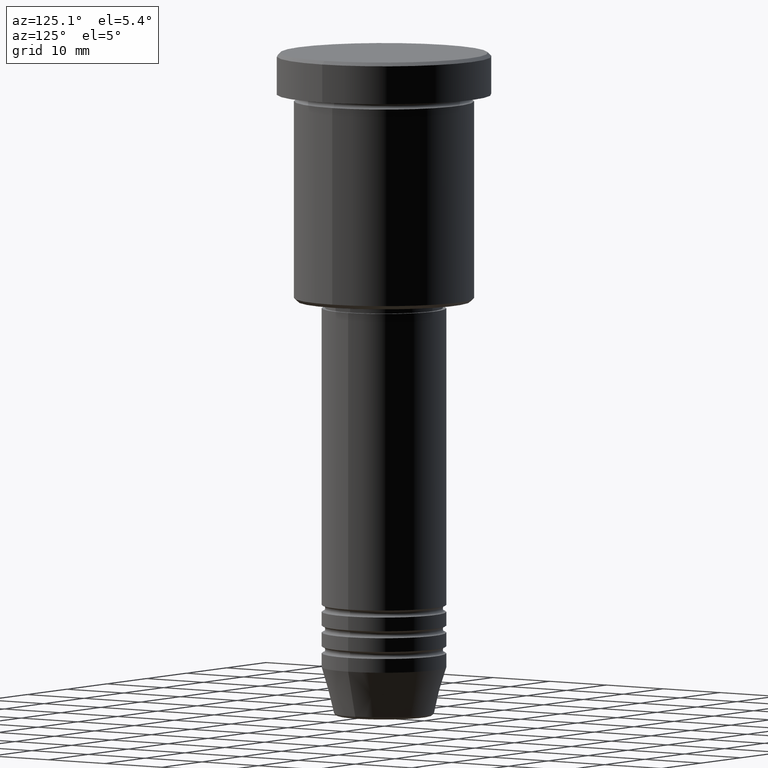
[diagram: clean part render]
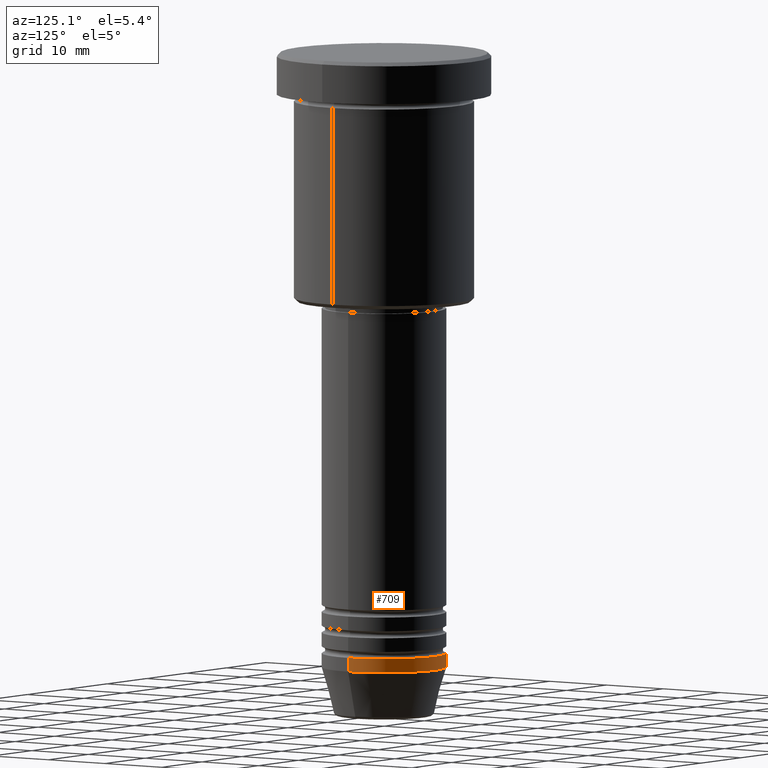
[diagram: same view with one face highlighted and labeled with its STEP entity id]
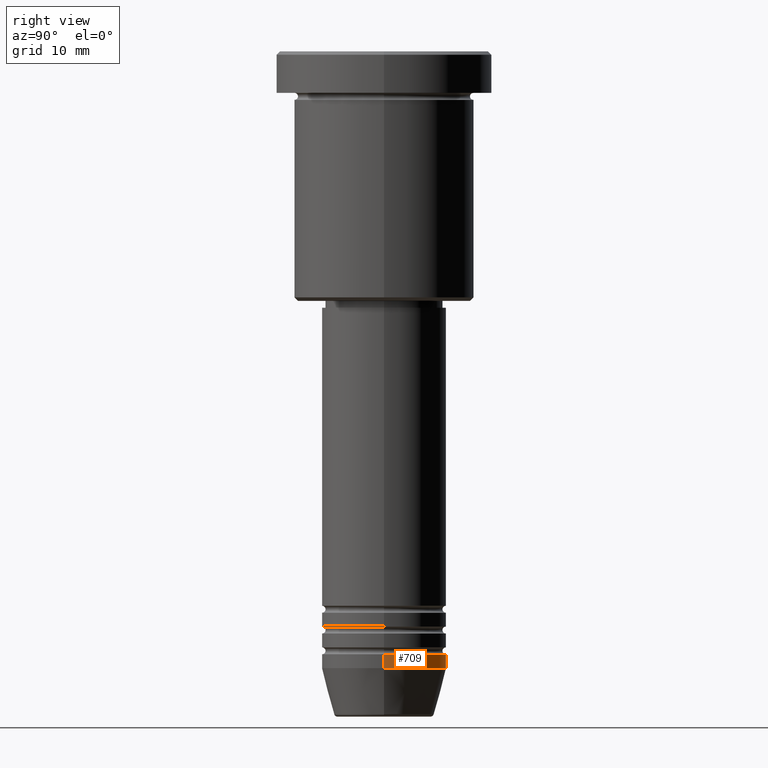
[diagram: same view with one face highlighted and labeled with its STEP entity id]
A machine part, auxiliary view. The second image highlights one B-rep face of the part: STEP entity #709.
A second angle (right view) of the same face is appended — the face is thin or edge-on in the first view.
In plain terms, the highlighted cylindrical surface (partial cylindrical patch) has radius 9 mm, axis along (-0, -0, 1).
Its self-contained STEP definition (entity closure, byte-faithful):
#46 = VERTEX_POINT ( 'NONE', #991 ) ;
#59 = FACE_OUTER_BOUND ( 'NONE', #251, .T. ) ;
#110 = ORIENTED_EDGE ( 'NONE', *, *, #828, .F. ) ;
#125 = DIRECTION ( 'NONE',  ( 1.000000000000000000, 0.000000000000000000, 0.000000000000000000 ) ) ;
#136 = DIRECTION ( 'NONE',  ( -0.000000000000000000, -0.000000000000000000, 1.000000000000000000 ) ) ;
#158 = ORIENTED_EDGE ( 'NONE', *, *, #290, .F. ) ;
#164 = AXIS2_PLACEMENT_3D ( 'NONE', #258, #351, #543 ) ;
#199 = EDGE_CURVE ( 'NONE', #46, #562, #1054, .T. ) ;
#232 = DIRECTION ( 'NONE',  ( -0.000000000000000000, -0.000000000000000000, 1.000000000000000000 ) ) ;
#247 = CARTESIAN_POINT ( 'NONE',  ( 0.000000000000000000, 0.000000000000000000, 0.000000000000000000 ) ) ;
#251 = EDGE_LOOP ( 'NONE', ( #681, #399, #158, #110 ) ) ;
#258 = CARTESIAN_POINT ( 'NONE',  ( 0.000000000000000000, 0.000000000000000000, -89.00000000000000000 ) ) ;
#287 = CIRCLE ( 'NONE', #164, 9.000000000000000000 ) ;
#290 = EDGE_CURVE ( 'NONE', #922, #562, #804, .T. ) ;
#313 = CYLINDRICAL_SURFACE ( 'NONE', #614, 9.000000000000000000 ) ;
#351 = DIRECTION ( 'NONE',  ( -0.000000000000000000, -0.000000000000000000, 1.000000000000000000 ) ) ;
#399 = ORIENTED_EDGE ( 'NONE', *, *, #199, .T. ) ;
#405 = CARTESIAN_POINT ( 'NONE',  ( -9.000000000000000000, 1.102182119232617714E-15, 0.000000000000000000 ) ) ;
#440 = CARTESIAN_POINT ( 'NONE',  ( 9.000000000000000000, 0.000000000000000000, -87.00000000000000000 ) ) ;
#543 = DIRECTION ( 'NONE',  ( 1.000000000000000000, 0.000000000000000000, 0.000000000000000000 ) ) ;
#546 = CARTESIAN_POINT ( 'NONE',  ( -9.000000000000000000, 1.102182119232617714E-15, -87.00000000000000000 ) ) ;
#562 = VERTEX_POINT ( 'NONE', #546 ) ;
#614 = AXIS2_PLACEMENT_3D ( 'NONE', #247, #951, #1038 ) ;
#681 = ORIENTED_EDGE ( 'NONE', *, *, #930, .T. ) ;
#689 = VECTOR ( 'NONE', #232, 1000.000000000000000 ) ;
#709 = ADVANCED_FACE ( 'NONE', ( #59 ), #313, .T. ) ;
#762 = CARTESIAN_POINT ( 'NONE',  ( 9.000000000000000000, 0.000000000000000000, 0.000000000000000000 ) ) ;
#804 = CIRCLE ( 'NONE', #882, 9.000000000000000000 ) ;
#828 = EDGE_CURVE ( 'NONE', #862, #922, #948, .T. ) ;
#862 = VERTEX_POINT ( 'NONE', #1086 ) ;
#882 = AXIS2_PLACEMENT_3D ( 'NONE', #969, #136, #125 ) ;
#883 = VECTOR ( 'NONE', #1121, 1000.000000000000000 ) ;
#922 = VERTEX_POINT ( 'NONE', #440 ) ;
#930 = EDGE_CURVE ( 'NONE', #862, #46, #287, .T. ) ;
#948 = LINE ( 'NONE', #762, #883 ) ;
#951 = DIRECTION ( 'NONE',  ( -0.000000000000000000, -0.000000000000000000, 1.000000000000000000 ) ) ;
#969 = CARTESIAN_POINT ( 'NONE',  ( 0.000000000000000000, 0.000000000000000000, -87.00000000000000000 ) ) ;
#991 = CARTESIAN_POINT ( 'NONE',  ( -9.000000000000000000, 1.102182119232617714E-15, -89.00000000000000000 ) ) ;
#1038 = DIRECTION ( 'NONE',  ( 1.000000000000000000, 0.000000000000000000, 0.000000000000000000 ) ) ;
#1054 = LINE ( 'NONE', #405, #689 ) ;
#1086 = CARTESIAN_POINT ( 'NONE',  ( 9.000000000000000000, 0.000000000000000000, -89.00000000000000000 ) ) ;
#1121 = DIRECTION ( 'NONE',  ( -0.000000000000000000, -0.000000000000000000, 1.000000000000000000 ) ) ;